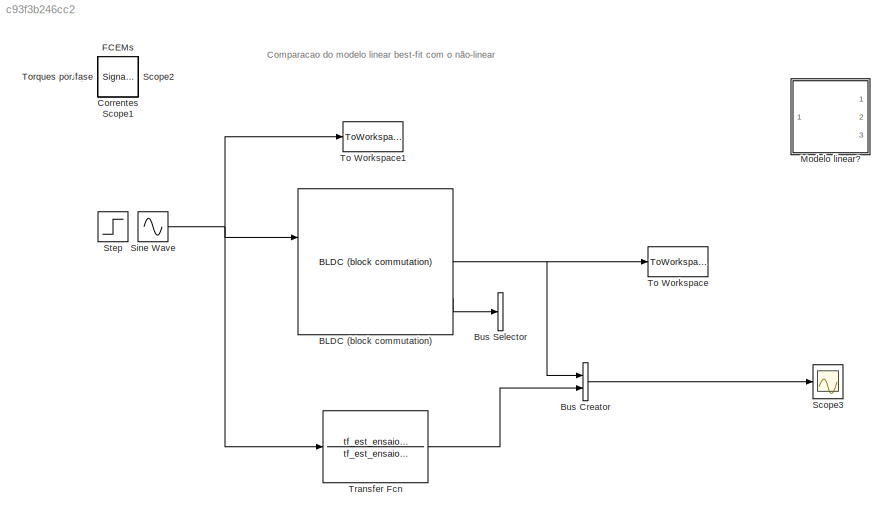
MODEL slx_c93f3b246cc2
KIND model
BLOCK [Reference] BLDC (block commutation)  REF=BLDC/BLDC (block commutation)
  J = 1.39e-6
  Kd = 0
  Ke = 15.7e-3/1.19
  Kt = 15.7e-3/1.19
  L = 2.04/2000
  P = 8
  Ports = [2, 3]
  R = 10.1/2
  SourceBlock = BLDC/BLDC (block commutation)
  SourceType = Simulador BLDC (block commutation)
BLOCK [BusCreator] Bus Creator
  DisplayOption = bar
  Inputs = 2
  Ports = [2, 1]
BLOCK [BusSelector] Bus Selector
  OutputSignals = Torque Total,FCEMs
  Ports = [1, 2]
BLOCK [SignalViewerScope] Correntes
  IOType = viewer
  LimitDataPoints = off
  MaxDataPoints = 7500
  NumInputPorts = 3
  Ports = []
  RefreshTime = 0.035000
  ShowDataMarkers = off
  ShowLegends = off
  YMax = 5~5~5
  YMin = -5~-5~-5
  ZoomMode = yonly
BLOCK [SignalViewerScope] FCEMs
  IOType = viewer
  LimitDataPoints = off
  MaxDataPoints = 7500
  NumInputPorts = 3
  Ports = []
  RefreshTime = 0.035000
  SaveName = ScopeData2
  ShowDataMarkers = off
  ShowLegends = off
  YMax = 5~5~5
  YMin = -5~-5~-5
  ZoomMode = xonly
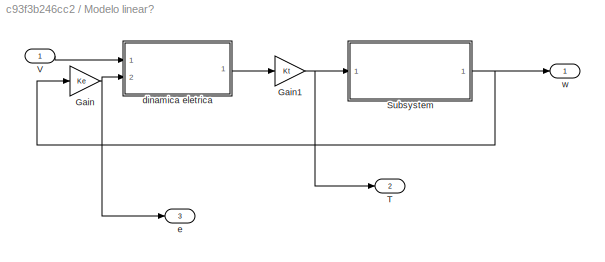
BLOCK [SubSystem] Modelo linear?
  FunctionWithSeparateData = off
  MaskHideContents = off
  MinAlgLoopOccurrences = off
  Opaque = off
  Ports = [1, 3]
  PropExecContextOutsideSubsystem = off
  RTWSystemCode = Auto
  RequestExecContextInheritance = off
BLOCK [Gain] Modelo linear?/Gain
  Gain = Ke
  OutDataTypeStr = Inherit: Inherit via internal rule
  ParamDataTypeStr = Inherit: Inherit via internal rule
  SaturateOnIntegerOverflow = off
BLOCK [Gain] Modelo linear?/Gain1
  Gain = Kt
  OutDataTypeStr = Inherit: Inherit via internal rule
  ParamDataTypeStr = Inherit: Inherit via internal rule
  SaturateOnIntegerOverflow = off
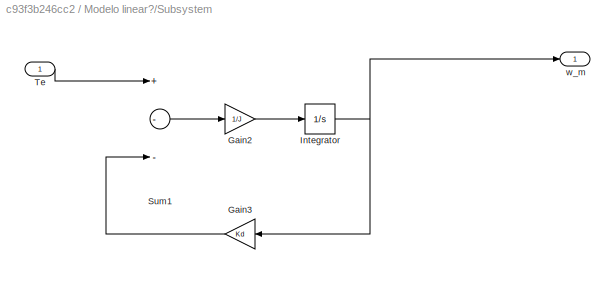
BLOCK [SubSystem] Modelo linear?/Subsystem
  FunctionWithSeparateData = off
  MaskHideContents = off
  MinAlgLoopOccurrences = off
  Opaque = off
  Ports = [1, 1]
  PropExecContextOutsideSubsystem = off
  RTWSystemCode = Auto
  RequestExecContextInheritance = off
BLOCK [Gain] Modelo linear?/Subsystem/Gain2
  Gain = 1/J
  OutDataTypeStr = Inherit: Inherit via internal rule
  ParamDataTypeStr = Inherit: Inherit via internal rule
  SaturateOnIntegerOverflow = off
BLOCK [Gain] Modelo linear?/Subsystem/Gain3
  Gain = Kd
  OutDataTypeStr = Inherit: Inherit via internal rule
  ParamDataTypeStr = Inherit: Inherit via internal rule
  SaturateOnIntegerOverflow = off
BLOCK [Integrator] Modelo linear?/Subsystem/Integrator
  Ports = [1, 1]
BLOCK [Sum] Modelo linear?/Subsystem/Sum1
  InputSameDT = off
  Inputs = +--
  OutDataTypeStr = Inherit: Inherit via internal rule
  Ports = [3, 1]
  SaturateOnIntegerOverflow = off
BLOCK [Inport] Modelo linear?/Subsystem/Te
  IconDisplay = Port number
BLOCK [Outport] Modelo linear?/Subsystem/w_m
  IconDisplay = Port number
BLOCK [Outport] Modelo linear?/T
  IconDisplay = Port number
  Port = 2
BLOCK [Inport] Modelo linear?/V
  IconDisplay = Port number
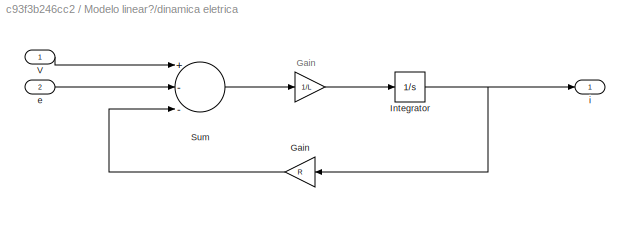
BLOCK [SubSystem] Modelo linear?/dinamica eletrica
  FunctionWithSeparateData = off
  MaskHideContents = off
  MinAlgLoopOccurrences = off
  Opaque = off
  Ports = [2, 1]
  PropExecContextOutsideSubsystem = off
  RTWSystemCode = Auto
  RequestExecContextInheritance = off
BLOCK [Gain] Modelo linear?/dinamica eletrica/ 
  Gain = 1/L
  OutDataTypeStr = Inherit: Inherit via internal rule
  ParamDataTypeStr = Inherit: Inherit via internal rule
  SaturateOnIntegerOverflow = off
BLOCK [Gain] Modelo linear?/dinamica eletrica/Gain
  Gain = R
  OutDataTypeStr = Inherit: Inherit via internal rule
  ParamDataTypeStr = Inherit: Inherit via internal rule
  SaturateOnIntegerOverflow = off
BLOCK [Integrator] Modelo linear?/dinamica eletrica/Integrator
  Ports = [1, 1]
BLOCK [Sum] Modelo linear?/dinamica eletrica/Sum
  InputSameDT = off
  Inputs = +--
  OutDataTypeStr = Inherit: Inherit via internal rule
  Ports = [3, 1]
  SaturateOnIntegerOverflow = off
BLOCK [Inport] Modelo linear?/dinamica eletrica/V
  IconDisplay = Port number
BLOCK [Inport] Modelo linear?/dinamica eletrica/e
  IconDisplay = Port number
  Port = 2
BLOCK [Outport] Modelo linear?/dinamica eletrica/i
  IconDisplay = Port number
BLOCK [Outport] Modelo linear?/e
  IconDisplay = Port number
  Port = 3
BLOCK [Outport] Modelo linear?/w
  IconDisplay = Port number
BLOCK [SignalViewerScope] Scope1
  IOType = viewer
  LimitDataPoints = off
  MaxDataPoints = 7500
  NumInputPorts = 1
  Ports = []
  RefreshTime = 0.035000
  SaveName = ScopeData3
  ShowDataMarkers = off
  ShowLegends = off
BLOCK [SignalViewerScope] Scope2
  IOType = viewer
  LimitDataPoints = off
  MaxDataPoints = 7500
  NumInputPorts = 1
  Ports = []
  RefreshTime = 0.035000
  SaveName = ScopeData4
  ShowDataMarkers = off
  ShowLegends = off
BLOCK [Scope] Scope3
  DataFormat = StructureWithTime
  Floating = off
  LegendLocations = 0.91528     0.89506     0.12188     0.04439
  LimitDataPoints = off
  NumInputPorts = 1
  Ports = [1]
  SampleTime = 0
  SaveName = ScopeData1
  ShowLegends = on
BLOCK [Sin] Sine Wave
  Amplitude = 12
  Frequency = 10
  Ports = [0, 1]
  SampleTime = 0
BLOCK [Step] Step
  After = 4
  SampleTime = 0
  Time = 0
BLOCK [ToWorkspace] To Workspace
  MaxDataPoints = inf
  Ports = [1]
  SampleTime = -1
  VariableName = w_motor
BLOCK [ToWorkspace] To Workspace1
  MaxDataPoints = inf
  Ports = [1]
  SampleTime = -1
  VariableName = V
BLOCK [SignalViewerScope] Torque
  IOType = viewer
  LimitDataPoints = off
  MaxDataPoints = 7500
  NumInputPorts = 1
  Ports = []
  RefreshTime = 0.035000
  SaveName = Torque
  SaveToWorkspace = on
  ShowDataMarkers = off
  ShowLegends = off
  ZoomMode = xonly
BLOCK [SignalViewerScope] Torques por fase
  IOType = viewer
  LimitDataPoints = off
  MaxDataPoints = 7500
  NumInputPorts = 3
  Ports = []
  RefreshTime = 0.035000
  SaveName = ScopeData1
  ShowDataMarkers = off
  ShowLegends = off
  YMax = 5~5~5
  YMin = -5~-5~-5
  ZoomMode = xonly
BLOCK [TransferFcn] Transfer Fcn
  Denominator = tf_est_ensaio0.DEN
  Numerator = tf_est_ensaio0.NUM
ANNOTATION (root): Comparacao do modelo linear best-fit com o não-linear
ANNOTATION Modelo linear?/dinamica eletrica: Gain
NET BLDC (block commutation):2 -> Bus Creator:1, To Workspace:1
LINE BLDC (block commutation):3 -> Bus Selector:1
LINE Bus Creator:1 -> Scope3:1
NET Modelo linear?/Gain1:1 -> Modelo linear?/Subsystem:1, Modelo linear?/T:1
NET Modelo linear?/Gain:1 -> Modelo linear?/dinamica eletrica:2, Modelo linear?/e:1
LINE Modelo linear?/Subsystem/Gain2:1 -> Modelo linear?/Subsystem/Integrator:1
LINE Modelo linear?/Subsystem/Gain3:1 -> Modelo linear?/Subsystem/Sum1:3
NET Modelo linear?/Subsystem/Integrator:1 -> Modelo linear?/Subsystem/Gain3:1, Modelo linear?/Subsystem/w_m:1
LINE Modelo linear?/Subsystem/Sum1:1 -> Modelo linear?/Subsystem/Gain2:1
LINE Modelo linear?/Subsystem/Te:1 -> Modelo linear?/Subsystem/Sum1:1
NET Modelo linear?/Subsystem:1 -> Modelo linear?/Gain:1, Modelo linear?/w:1
LINE Modelo linear?/V:1 -> Modelo linear?/dinamica eletrica:1
LINE Modelo linear?/dinamica eletrica/ :1 -> Modelo linear?/dinamica eletrica/Integrator:1
LINE Modelo linear?/dinamica eletrica/Gain:1 -> Modelo linear?/dinamica eletrica/Sum:3
NET Modelo linear?/dinamica eletrica/Integrator:1 -> Modelo linear?/dinamica eletrica/Gain:1, Modelo linear?/dinamica eletrica/i:1
LINE Modelo linear?/dinamica eletrica/Sum:1 -> Modelo linear?/dinamica eletrica/ :1
LINE Modelo linear?/dinamica eletrica/V:1 -> Modelo linear?/dinamica eletrica/Sum:1
LINE Modelo linear?/dinamica eletrica/e:1 -> Modelo linear?/dinamica eletrica/Sum:2
LINE Modelo linear?/dinamica eletrica:1 -> Modelo linear?/Gain1:1
NET Sine Wave:1 -> BLDC (block commutation):1, To Workspace1:1, Transfer Fcn:1
LINE Transfer Fcn:1 -> Bus Creator:2
note: NET lines group one-source signal fan-out (src -> all destinations, sorted); 1:1 wires keep LINE
